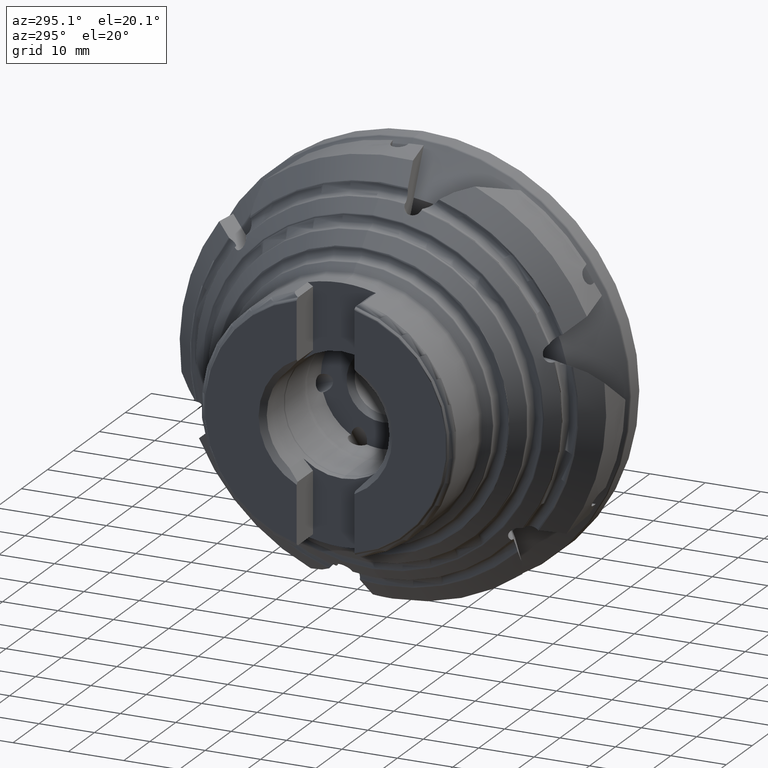
[diagram: clean part render]
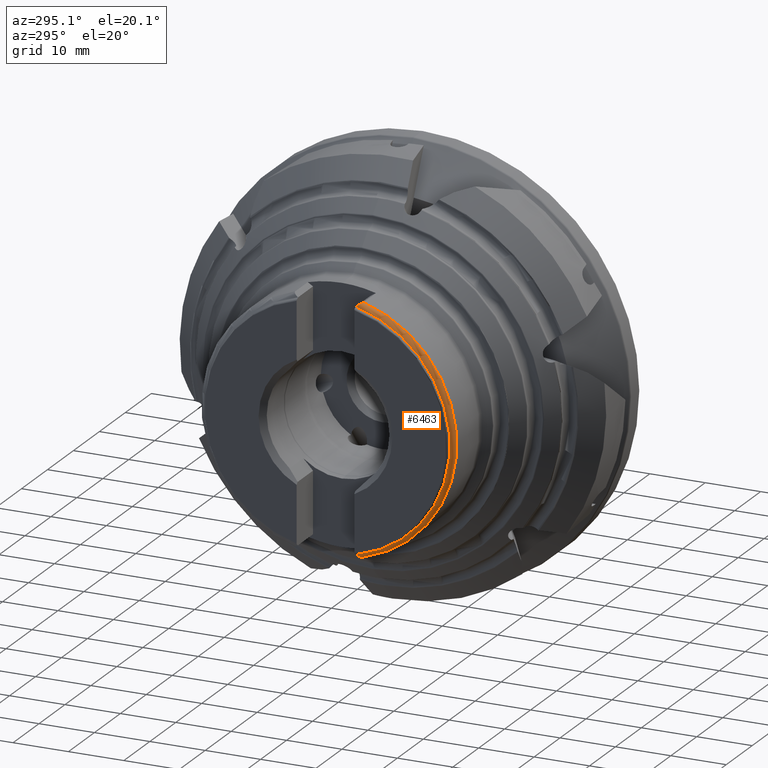
[diagram: same view with one face highlighted and labeled with its STEP entity id]
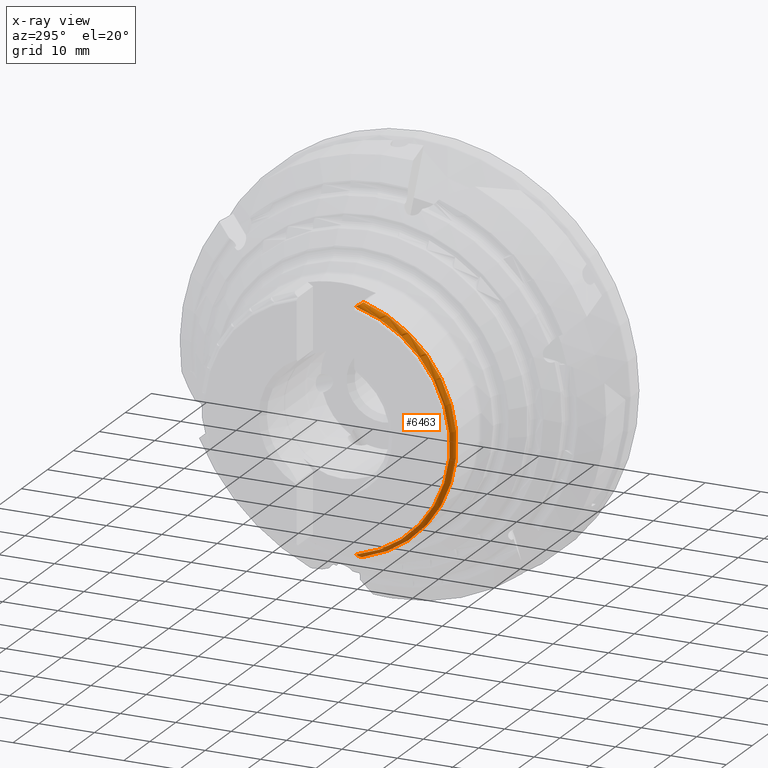
[diagram: x-ray of the same camera — body ghosted, the highlighted face saturated]
A machine part, auxiliary view. The second image highlights one B-rep face of the part: STEP entity #6463.
The next image is the same camera in x-ray: the body ghosted, the highlighted face saturated — about 0% of this face is hidden behind the body in this view.
In plain terms, the highlighted toroidal blend (fillet) surface has major radius 22 mm and minor (blend) radius 1 mm.
Its self-contained STEP definition (entity closure, byte-faithful):
#254 = VERTEX_POINT ( 'NONE', #261 ) ;
#255 = CARTESIAN_POINT ( 'NONE',  ( -42.14999999999999900, -6.149081337522134500, -22.16277957983919200 ) ) ;
#257 = CARTESIAN_POINT ( 'NONE',  ( -43.12876197310684000, -5.218827433484710500, -21.58299944909203900 ) ) ;
#261 = CARTESIAN_POINT ( 'NONE',  ( -43.12876197310684000, -5.218827433484715800, 21.58299944909203900 ) ) ;
#274 = VERTEX_POINT ( 'NONE', #276 ) ;
#276 = CARTESIAN_POINT ( 'NONE',  ( -42.14999999999999900, -6.149081337522136300, 22.16277957983919200 ) ) ;
#279 = VERTEX_POINT ( 'NONE', #257 ) ;
#281 = VERTEX_POINT ( 'NONE', #255 ) ;
#876 = CIRCLE ( 'NONE', #6155, 23.00000000000000000 ) ;
#2160 = CARTESIAN_POINT ( 'NONE',  ( -42.14999999999999900, 0.0000000000000000000, 0.0000000000000000000 ) ) ;
#2161 = DIRECTION ( 'NONE',  ( 1.000000000000000000, -0.0000000000000000000, -0.0000000000000000000 ) ) ;
#2162 = DIRECTION ( 'NONE',  ( 0.0000000000000000000, 0.0000000000000000000, -1.000000000000000000 ) ) ;
#2990 = ORIENTED_EDGE ( 'NONE', *, *, #11548, .T. ) ;
#3073 = ORIENTED_EDGE ( 'NONE', *, *, #11575, .T. ) ;
#3075 = ORIENTED_EDGE ( 'NONE', *, *, #5548, .F. ) ;
#3098 = ORIENTED_EDGE ( 'NONE', *, *, #5587, .T. ) ;
#3403 = AXIS2_PLACEMENT_3D ( 'NONE', #11402, #11403, #11404 ) ;
#3855 = DIRECTION ( 'NONE',  ( 0.0000000000000000000, 0.0000000000000000000, -1.000000000000000000 ) ) ;
#3857 = DIRECTION ( 'NONE',  ( 1.000000000000000000, -0.0000000000000000000, -0.0000000000000000000 ) ) ;
#5036 = EDGE_LOOP ( 'NONE', ( #3075, #3098, #3073, #2990 ) ) ;
#5548 = EDGE_CURVE ( 'NONE', #274, #281, #876, .T. ) ;
#5587 = EDGE_CURVE ( 'NONE', #274, #254, #6889, .T. ) ;
#6089 = TOROIDAL_SURFACE ( 'NONE', #6289, 22.00000000000000000, 0.9999999999999986700 ) ;
#6155 = AXIS2_PLACEMENT_3D ( 'NONE', #2160, #2161, #2162 ) ;
#6289 = AXIS2_PLACEMENT_3D ( 'NONE', #10657, #3857, #3855 ) ;
#6463 = ADVANCED_FACE ( 'NONE', ( #9099 ), #6089, .T. ) ;
#6682 = B_SPLINE_CURVE_WITH_KNOTS ( 'NONE', 3,
 ( #11292, #11291, #11296, #11297, #11298, #11299, #11300, #11301, #11302, #11303 ),
 .UNSPECIFIED., .F., .F.,
 ( 4, 2, 2, 2, 4 ),
 ( 0.0000000000000000000, 0.0003970312538260687300, 0.0007940625076521374500, 0.001191093761478206300, 0.001588125015304274900 ),
 .UNSPECIFIED. ) ;
#6889 = B_SPLINE_CURVE_WITH_KNOTS ( 'NONE', 3,
 ( #10502, #10503, #10507, #10508, #10509, #10510, #10511, #10512, #10513, #10514 ),
 .UNSPECIFIED., .F., .F.,
 ( 4, 2, 2, 2, 4 ),
 ( 0.0000000000000000000, 0.0003978126942299036400, 0.0007956253884598072900, 0.001193438082689711000, 0.001591250776919614600 ),
 .UNSPECIFIED. ) ;
#9099 = FACE_OUTER_BOUND ( 'NONE', #5036, .T. ) ;
#9163 = CIRCLE ( 'NONE', #3403, 22.20499999999999500 ) ;
#10502 = CARTESIAN_POINT ( 'NONE',  ( -42.14999999999999900, -6.149081337522136300, 22.16277957983919200 ) ) ;
#10503 = CARTESIAN_POINT ( 'NONE',  ( -42.28485543270551300, -6.149081337522133600, 22.16277957983918900 ) ) ;
#10507 = CARTESIAN_POINT ( 'NONE',  ( -42.41623810789465700, -6.116891272516041600, 22.14271714310337900 ) ) ;
#10508 = CARTESIAN_POINT ( 'NONE',  ( -42.64805147086509900, -6.006130114322865600, 22.07368532447812000 ) ) ;
#10509 = CARTESIAN_POINT ( 'NONE',  ( -42.74869185080446200, -5.928081770960409900, 22.02504174607131700 ) ) ;
#10510 = CARTESIAN_POINT ( 'NONE',  ( -42.91265849732320700, -5.750770026875795100, 21.91453231878247700 ) ) ;
#10511 = CARTESIAN_POINT ( 'NONE',  ( -42.97760884465724000, -5.650209329592172500, 21.85185793067608600 ) ) ;
#10512 = CARTESIAN_POINT ( 'NONE',  ( -43.07513850725456500, -5.441593270839592700, 21.72183810996415300 ) ) ;
#10513 = CARTESIAN_POINT ( 'NONE',  ( -43.10898630309388600, -5.331120044362377200, 21.65298574459053400 ) ) ;
#10514 = CARTESIAN_POINT ( 'NONE',  ( -43.12876197310684000, -5.218827433484715800, 21.58299944909203900 ) ) ;
#10657 = CARTESIAN_POINT ( 'NONE',  ( -42.14999999999999900, 0.0000000000000000000, 0.0000000000000000000 ) ) ;
#11291 = CARTESIAN_POINT ( 'NONE',  ( -43.10899593719592800, -5.331065338834220800, -21.65295164940627300 ) ) ;
#11292 = CARTESIAN_POINT ( 'NONE',  ( -43.12876197310684000, -5.218827433484710500, -21.58299944909203900 ) ) ;
#11296 = CARTESIAN_POINT ( 'NONE',  ( -43.07580167535191900, -5.439877492297909200, -21.72076875212226500 ) ) ;
#11297 = CARTESIAN_POINT ( 'NONE',  ( -42.97807463665400700, -5.649506850567987300, -21.85142011108864000 ) ) ;
#11298 = CARTESIAN_POINT ( 'NONE',  ( -42.91334595356296000, -5.749829556901220300, -21.91394617149252600 ) ) ;
#11299 = CARTESIAN_POINT ( 'NONE',  ( -42.74959921778114600, -5.927295707471278000, -22.02455183252134300 ) ) ;
#11300 = CARTESIAN_POINT ( 'NONE',  ( -42.64979191648344400, -6.005130256692967600, -22.07306216387124600 ) ) ;
#11301 = CARTESIAN_POINT ( 'NONE',  ( -42.41644841335190800, -6.116957654566553200, -22.14275851567247200 ) ) ;
#11302 = CARTESIAN_POINT ( 'NONE',  ( -42.28477570909505800, -6.149081337522233100, -22.16277957983925300 ) ) ;
#11303 = CARTESIAN_POINT ( 'NONE',  ( -42.14999999999999900, -6.149081337522134500, -22.16277957983919200 ) ) ;
#11402 = CARTESIAN_POINT ( 'NONE',  ( -43.12876197310684000, 0.0000000000000000000, 0.0000000000000000000 ) ) ;
#11403 = DIRECTION ( 'NONE',  ( 1.000000000000000000, -0.0000000000000000000, -0.0000000000000000000 ) ) ;
#11404 = DIRECTION ( 'NONE',  ( 0.0000000000000000000, 0.0000000000000000000, -1.000000000000000000 ) ) ;
#11548 = EDGE_CURVE ( 'NONE', #279, #281, #6682, .T. ) ;
#11575 = EDGE_CURVE ( 'NONE', #254, #279, #9163, .T. ) ;